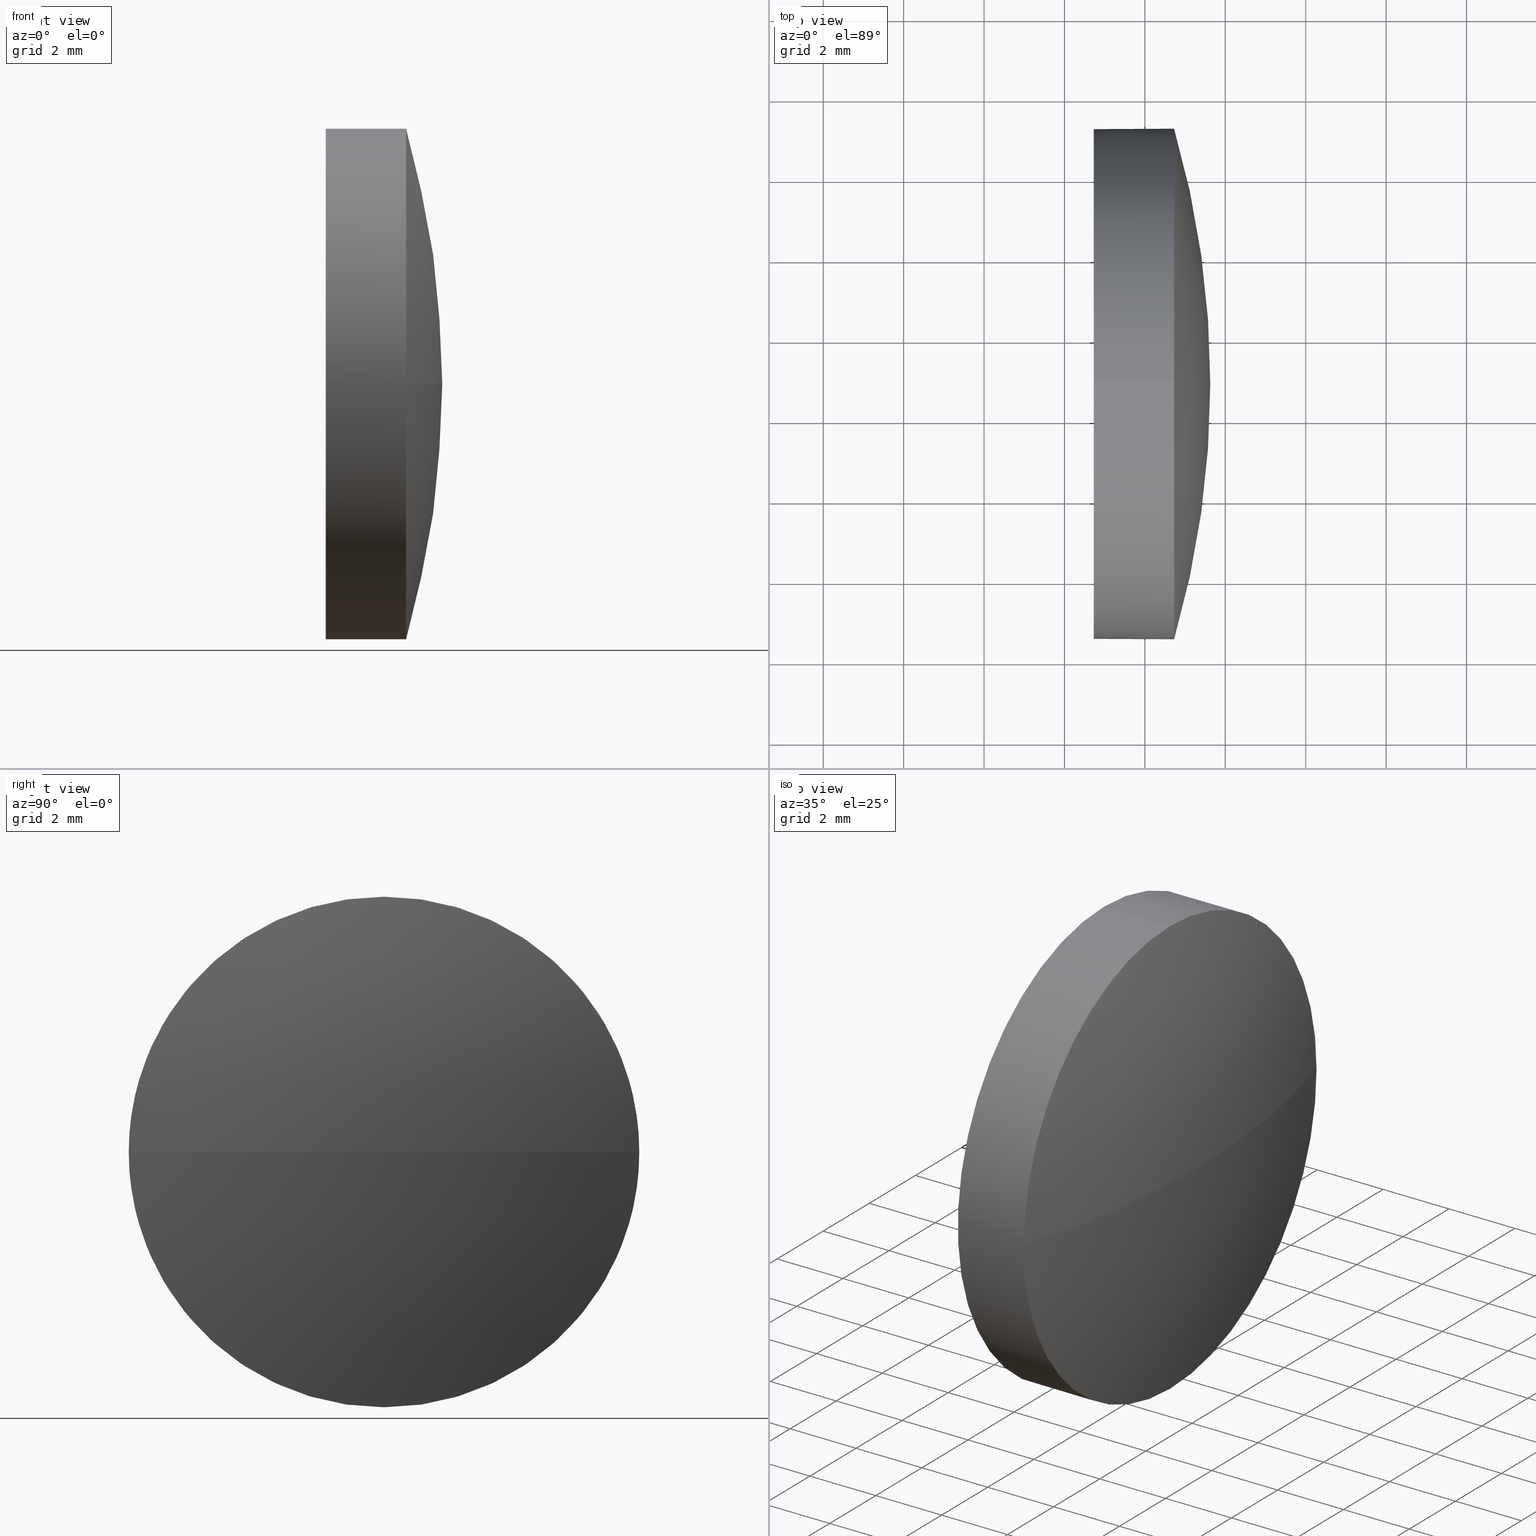
[diagram: canonical four-view strip — front | top / right | iso, engineering-drawing reading convention]
A machine part, canonical four-view strip (front | top / right | iso — engineering-drawing reading convention). The complete STEP part file that produces these views, byte-faithful:
ISO-10303-21;
HEADER;
FILE_DESCRIPTION (( 'STEP AP214' ),
    '1' );
FILE_NAME ('100367.STEP',
    '2019-06-04T05:32:25',
    ( '' ),
    ( '' ),
    'SwSTEP 2.0',
    'SolidWorks 2016',
    '' );
FILE_SCHEMA (( 'AUTOMOTIVE_DESIGN' ));
ENDSEC;

DATA;
#1 = CARTESIAN_POINT ( 'NONE',  ( 440.7273123846862900, -5.129459319946108500, 0.0000000000000000000 ) ) ;
#2 = ORIENTED_EDGE ( 'NONE', *, *, #157, .T. ) ;
#3 = FILL_AREA_STYLE ('',( #116 ) ) ;
#4 = ADVANCED_BREP_SHAPE_REPRESENTATION ( '100367', ( #118, #121 ), #57 ) ;
#5 = ORIENTED_EDGE ( 'NONE', *, *, #147, .T. ) ;
#6 = DIRECTION ( 'NONE',  ( 1.000000000000000000, 0.0000000000000000000, 0.0000000000000000000 ) ) ;
#7 = VERTEX_POINT ( 'NONE', #55 ) ;
#8 = AXIS2_PLACEMENT_3D ( 'NONE', #64, #76, #29 ) ;
#9 =( NAMED_UNIT ( * ) SI_UNIT ( $, .STERADIAN. ) SOLID_ANGLE_UNIT ( ) );
#10 = DIRECTION ( 'NONE',  ( 0.0000000000000000000, 0.0000000000000000000, 1.000000000000000000 ) ) ;
#11 = DIRECTION ( 'NONE',  ( 0.0000000000000000000, 0.0000000000000000000, 1.000000000000000000 ) ) ;
#12 = AXIS2_PLACEMENT_3D ( 'NONE', #185, #82, #125 ) ;
#13 = ORIENTED_EDGE ( 'NONE', *, *, #41, .T. ) ;
#14 = CARTESIAN_POINT ( 'NONE',  ( 420.7759234957979400, -5.129459319946038300, 0.0000000000000000000 ) ) ;
#15 = ADVANCED_FACE ( 'NONE', ( #21 ), #17, .T. ) ;
#16 = AXIS2_PLACEMENT_3D ( 'NONE', #88, #105, #47 ) ;
#17 = SPHERICAL_SURFACE ( 'NONE', #53, 22.85138888888821300 ) ;
#18 = DIRECTION ( 'NONE',  ( -1.000000000000000000, -0.0000000000000000000, -0.0000000000000000000 ) ) ;
#19 = DIRECTION ( 'NONE',  ( -1.000000000000000000, -0.0000000000000000000, -0.0000000000000000000 ) ) ;
#20 = EDGE_LOOP ( 'NONE', ( #144, #33, #179, #24, #164 ) ) ;
#21 = FACE_OUTER_BOUND ( 'NONE', #90, .T. ) ;
#22 = EDGE_CURVE ( 'NONE', #119, #79, #165, .T. ) ;
#23 =( LENGTH_UNIT ( ) NAMED_UNIT ( * ) SI_UNIT ( .MILLI., .METRE. ) );
#24 = ORIENTED_EDGE ( 'NONE', *, *, #63, .T. ) ;
#25 = DIRECTION ( 'NONE',  ( 0.0000000000000000000, 0.0000000000000000000, 1.000000000000000000 ) ) ;
#26 = CIRCLE ( 'NONE', #177, 6.349999999999999600 ) ;
#27 = CARTESIAN_POINT ( 'NONE',  ( 442.7273123846861700, -5.129459319946108500, 6.349999999999999600 ) ) ;
#28 = DIRECTION ( 'NONE',  ( 0.0000000000000000000, 0.0000000000000000000, 1.000000000000000000 ) ) ;
#29 = DIRECTION ( 'NONE',  ( 0.0000000000000000000, 0.0000000000000000000, 1.000000000000000000 ) ) ;
#30 = DIRECTION ( 'NONE',  ( 0.0000000000000000000, 0.0000000000000000000, -1.000000000000000000 ) ) ;
#31 = ORIENTED_EDGE ( 'NONE', *, *, #35, .T. ) ;
#32 = CYLINDRICAL_SURFACE ( 'NONE', #67, 6.349999999999999600 ) ;
#33 = ORIENTED_EDGE ( 'NONE', *, *, #50, .T. ) ;
#34 =( NAMED_UNIT ( * ) PLANE_ANGLE_UNIT ( ) SI_UNIT ( $, .RADIAN. ) );
#35 = EDGE_CURVE ( 'NONE', #62, #168, #58, .T. ) ;
#36 = ORIENTED_EDGE ( 'NONE', *, *, #151, .F. ) ;
#37 = AXIS2_PLACEMENT_3D ( 'NONE', #130, #159, #87 ) ;
#38 = CARTESIAN_POINT ( 'NONE',  ( 420.7759234957979400, -5.129459319946038300, 0.0000000000000000000 ) ) ;
#39 = DIRECTION ( 'NONE',  ( 0.0000000000000000000, 0.0000000000000000000, -1.000000000000000000 ) ) ;
#40 = PRESENTATION_STYLE_ASSIGNMENT (( #94 ) ) ;
#41 = EDGE_CURVE ( 'NONE', #7, #168, #135, .T. ) ;
#42 = DIRECTION ( 'NONE',  ( -1.000000000000000000, -0.0000000000000000000, -0.0000000000000000000 ) ) ;
#43 = AXIS2_PLACEMENT_3D ( 'NONE', #74, #42, #85 ) ;
#44 = SURFACE_SIDE_STYLE ('',( #98 ) ) ;
#45 = EDGE_LOOP ( 'NONE', ( #5, #31, #66, #155, #2 ) ) ;
#46 = FACE_OUTER_BOUND ( 'NONE', #102, .T. ) ;
#47 = DIRECTION ( 'NONE',  ( 0.0000000000000000000, -1.000000000000000000, -1.224646799147353200E-016 ) ) ;
#48 = ADVANCED_FACE ( 'NONE', ( #68 ), #141, .T. ) ;
#49 = AXIS2_PLACEMENT_3D ( 'NONE', #1, #6, #39 ) ;
#50 = EDGE_CURVE ( 'NONE', #62, #119, #175, .T. ) ;
#51 = UNCERTAINTY_MEASURE_WITH_UNIT (LENGTH_MEASURE( 1.000000000000000100E-005 ), #77, 'distance_accuracy_value', 'NONE');
#52 = ORIENTED_EDGE ( 'NONE', *, *, #163, .T. ) ;
#53 = AXIS2_PLACEMENT_3D ( 'NONE', #38, #180, #92 ) ;
#54 = FILL_AREA_STYLE_COLOUR ( '', #133 ) ;
#55 = CARTESIAN_POINT ( 'NONE',  ( 440.7273123846862900, -5.129459319946108500, 6.349999999999999600 ) ) ;
#56 = CARTESIAN_POINT ( 'NONE',  ( 438.3992838946919600, -5.129459319946108500, 0.0000000000000000000 ) ) ;
#57 =( GEOMETRIC_REPRESENTATION_CONTEXT ( 3 ) GLOBAL_UNCERTAINTY_ASSIGNED_CONTEXT ( ( #169 ) ) GLOBAL_UNIT_ASSIGNED_CONTEXT ( ( #23, #71, #9 ) ) REPRESENTATION_CONTEXT ( 'NONE', 'WORKASPACE' ) );
#58 = LINE ( 'NONE', #59, #128 ) ;
#59 = CARTESIAN_POINT ( 'NONE',  ( 438.3992838946919600, -5.129459319946107600, -6.349999999999999600 ) ) ;
#60 = PLANE ( 'NONE',  #49 ) ;
#61 = CARTESIAN_POINT ( 'NONE',  ( 440.7273123846862900, -5.129459319946107600, -6.349999999999999600 ) ) ;
#62 = VERTEX_POINT ( 'NONE', #101 ) ;
#63 = EDGE_CURVE ( 'NONE', #79, #7, #143, .T. ) ;
#64 = CARTESIAN_POINT ( 'NONE',  ( 438.3992838946919600, -5.129459319946108500, 0.0000000000000000000 ) ) ;
#65 = FACE_OUTER_BOUND ( 'NONE', #45, .T. ) ;
#66 = ORIENTED_EDGE ( 'NONE', *, *, #41, .F. ) ;
#67 = AXIS2_PLACEMENT_3D ( 'NONE', #56, #170, #25 ) ;
#68 = FACE_OUTER_BOUND ( 'NONE', #123, .T. ) ;
#69 = MECHANICAL_DESIGN_GEOMETRIC_PRESENTATION_REPRESENTATION (  '', ( #183 ), #78 ) ;
#70 =( LENGTH_UNIT ( ) NAMED_UNIT ( * ) SI_UNIT ( .MILLI., .METRE. ) );
#71 =( NAMED_UNIT ( * ) PLANE_ANGLE_UNIT ( ) SI_UNIT ( $, .RADIAN. ) );
#72 = FACE_OUTER_BOUND ( 'NONE', #20, .T. ) ;
#73 = PRODUCT_DEFINITION_CONTEXT ( 'detailed design', #184, 'design' ) ;
#74 = CARTESIAN_POINT ( 'NONE',  ( 440.7273123846862900, -5.129459319946108500, 0.0000000000000000000 ) ) ;
#75 = PRESENTATION_LAYER_ASSIGNMENT (  '', '', ( #172 ) ) ;
#76 = DIRECTION ( 'NONE',  ( -1.000000000000000000, -0.0000000000000000000, -0.0000000000000000000 ) ) ;
#77 =( LENGTH_UNIT ( ) NAMED_UNIT ( * ) SI_UNIT ( .MILLI., .METRE. ) );
#78 =( GEOMETRIC_REPRESENTATION_CONTEXT ( 3 ) GLOBAL_UNCERTAINTY_ASSIGNED_CONTEXT ( ( #137 ) ) GLOBAL_UNIT_ASSIGNED_CONTEXT ( ( #70, #152, #96 ) ) REPRESENTATION_CONTEXT ( 'NONE', 'WORKASPACE' ) );
#79 = VERTEX_POINT ( 'NONE', #27 ) ;
#80 =( GEOMETRIC_REPRESENTATION_CONTEXT ( 3 ) GLOBAL_UNCERTAINTY_ASSIGNED_CONTEXT ( ( #51 ) ) GLOBAL_UNIT_ASSIGNED_CONTEXT ( ( #77, #34, #107 ) ) REPRESENTATION_CONTEXT ( 'NONE', 'WORKASPACE' ) );
#81 = DIRECTION ( 'NONE',  ( 1.000000000000000000, 0.0000000000000000000, 0.0000000000000000000 ) ) ;
#82 = DIRECTION ( 'NONE',  ( -1.000000000000000000, -0.0000000000000000000, -0.0000000000000000000 ) ) ;
#83 = ORIENTED_EDGE ( 'NONE', *, *, #50, .F. ) ;
#84 = CIRCLE ( 'NONE', #16, 22.85138888888821300 ) ;
#85 = DIRECTION ( 'NONE',  ( 0.0000000000000000000, 0.0000000000000000000, 1.000000000000000000 ) ) ;
#86 = MECHANICAL_DESIGN_GEOMETRIC_PRESENTATION_REPRESENTATION (  '', ( #172 ), #80 ) ;
#87 = DIRECTION ( 'NONE',  ( 0.0000000000000000000, 0.0000000000000000000, 1.000000000000000000 ) ) ;
#88 = CARTESIAN_POINT ( 'NONE',  ( 420.7759234957979400, -5.129459319946038300, 0.0000000000000000000 ) ) ;
#89 = ADVANCED_FACE ( 'NONE', ( #72 ), #32, .T. ) ;
#90 = EDGE_LOOP ( 'NONE', ( #132, #110, #83, #148 ) ) ;
#91 = AXIS2_PLACEMENT_3D ( 'NONE', #14, #30, #117 ) ;
#92 = DIRECTION ( 'NONE',  ( 0.0000000000000000000, -1.000000000000000000, 0.0000000000000000000 ) ) ;
#93 = PRODUCT ( '100367', '100367', '', ( #139 ) ) ;
#94 = SURFACE_STYLE_USAGE ( .BOTH. , #97 ) ;
#95 = PRODUCT_RELATED_PRODUCT_CATEGORY ( 'part', '', ( #93 ) ) ;
#96 =( NAMED_UNIT ( * ) SI_UNIT ( $, .STERADIAN. ) SOLID_ANGLE_UNIT ( ) );
#97 = SURFACE_SIDE_STYLE ('',( #136 ) ) ;
#98 = SURFACE_STYLE_FILL_AREA ( #3 ) ;
#99 = DIRECTION ( 'NONE',  ( -1.000000000000000000, -0.0000000000000000000, -0.0000000000000000000 ) ) ;
#100 = CIRCLE ( 'NONE', #91, 22.85138888888821300 ) ;
#101 = CARTESIAN_POINT ( 'NONE',  ( 442.7273123846861700, -5.129459319946107600, -6.349999999999999600 ) ) ;
#102 = EDGE_LOOP ( 'NONE', ( #13, #162 ) ) ;
#103 = CARTESIAN_POINT ( 'NONE',  ( 442.7273123846861700, -5.129459319946108500, 0.0000000000000000000 ) ) ;
#104 = CARTESIAN_POINT ( 'NONE',  ( 442.7273123846861700, -11.47945931994604700, 0.0000000000000000000 ) ) ;
#105 = DIRECTION ( 'NONE',  ( 0.0000000000000000000, -1.224646799147353200E-016, 1.000000000000000000 ) ) ;
#106 = VECTOR ( 'NONE', #19, 1000.000000000000000 ) ;
#107 =( NAMED_UNIT ( * ) SI_UNIT ( $, .STERADIAN. ) SOLID_ANGLE_UNIT ( ) );
#108 = AXIS2_PLACEMENT_3D ( 'NONE', #103, #153, #124 ) ;
#109 = PRESENTATION_STYLE_ASSIGNMENT (( #145 ) ) ;
#110 = ORIENTED_EDGE ( 'NONE', *, *, #151, .T. ) ;
#111 = CIRCLE ( 'NONE', #12, 6.349999999999999600 ) ;
#112 = PRODUCT_DEFINITION_SHAPE ( 'NONE', 'NONE',  #161 ) ;
#113 = ORIENTED_EDGE ( 'NONE', *, *, #157, .F. ) ;
#114 = DIRECTION ( 'NONE',  ( 0.0000000000000000000, -1.000000000000000000, 0.0000000000000000000 ) ) ;
#115 = CARTESIAN_POINT ( 'NONE',  ( 442.7273123846861700, -5.129459319946108500, 0.0000000000000000000 ) ) ;
#116 = FILL_AREA_STYLE_COLOUR ( '', #182 ) ;
#117 = DIRECTION ( 'NONE',  ( -1.000000000000000000, 0.0000000000000000000, 0.0000000000000000000 ) ) ;
#118 = MANIFOLD_SOLID_BREP ( '��ת1', #171 ) ;
#119 = VERTEX_POINT ( 'NONE', #104 ) ;
#120 = CYLINDRICAL_SURFACE ( 'NONE', #8, 6.349999999999999600 ) ;
#121 = AXIS2_PLACEMENT_3D ( 'NONE', #166, #10, #81 ) ;
#122 = APPLICATION_CONTEXT ( 'automotive_design' ) ;
#123 = EDGE_LOOP ( 'NONE', ( #36, #52, #113, #181 ) ) ;
#124 = DIRECTION ( 'NONE',  ( 0.0000000000000000000, 0.0000000000000000000, 1.000000000000000000 ) ) ;
#125 = DIRECTION ( 'NONE',  ( 0.0000000000000000000, 0.0000000000000000000, 1.000000000000000000 ) ) ;
#126 = CARTESIAN_POINT ( 'NONE',  ( 420.7759234957979400, -5.129459319946038300, 0.0000000000000000000 ) ) ;
#127 = VERTEX_POINT ( 'NONE', #173 ) ;
#128 = VECTOR ( 'NONE', #18, 1000.000000000000000 ) ;
#129 = SHAPE_DEFINITION_REPRESENTATION ( #112, #4 ) ;
#130 = CARTESIAN_POINT ( 'NONE',  ( 442.7273123846861700, -5.129459319946108500, 0.0000000000000000000 ) ) ;
#131 = CARTESIAN_POINT ( 'NONE',  ( 443.6273123846861500, -5.129459319946040100, 0.0000000000000000000 ) ) ;
#132 = ORIENTED_EDGE ( 'NONE', *, *, #163, .F. ) ;
#133 = COLOUR_RGB ( '',1.000000000000000000, 1.000000000000000000, 1.000000000000000000 ) ;
#134 = AXIS2_PLACEMENT_3D ( 'NONE', #126, #28, #114 ) ;
#135 = CIRCLE ( 'NONE', #43, 6.349999999999999600 ) ;
#136 = SURFACE_STYLE_FILL_AREA ( #150 ) ;
#137 = UNCERTAINTY_MEASURE_WITH_UNIT (LENGTH_MEASURE( 1.000000000000000100E-005 ), #70, 'distance_accuracy_value', 'NONE');
#138 = VERTEX_POINT ( 'NONE', #131 ) ;
#139 = PRODUCT_CONTEXT ( 'NONE', #122, 'mechanical' ) ;
#140 = APPLICATION_PROTOCOL_DEFINITION ( 'draft international standard', 'automotive_design', 1998, #122 ) ;
#141 = SPHERICAL_SURFACE ( 'NONE', #134, 22.85138888888821300 ) ;
#142 = PRESENTATION_LAYER_ASSIGNMENT (  '', '', ( #183 ) ) ;
#143 = LINE ( 'NONE', #154, #106 ) ;
#144 = ORIENTED_EDGE ( 'NONE', *, *, #35, .F. ) ;
#145 = SURFACE_STYLE_USAGE ( .BOTH. , #44 ) ;
#146 = PRODUCT_DEFINITION_FORMATION_WITH_SPECIFIED_SOURCE ( '�κ�', '', #93, .NOT_KNOWN. ) ;
#147 = EDGE_CURVE ( 'NONE', #127, #62, #178, .T. ) ;
#148 = ORIENTED_EDGE ( 'NONE', *, *, #147, .F. ) ;
#149 = AXIS2_PLACEMENT_3D ( 'NONE', #115, #99, #11 ) ;
#150 = FILL_AREA_STYLE ('',( #54 ) ) ;
#151 = EDGE_CURVE ( 'NONE', #138, #119, #100, .T. ) ;
#152 =( NAMED_UNIT ( * ) PLANE_ANGLE_UNIT ( ) SI_UNIT ( $, .RADIAN. ) );
#153 = DIRECTION ( 'NONE',  ( -1.000000000000000000, -0.0000000000000000000, -0.0000000000000000000 ) ) ;
#154 = CARTESIAN_POINT ( 'NONE',  ( 438.3992838946919600, -5.129459319946108500, 6.349999999999999600 ) ) ;
#155 = ORIENTED_EDGE ( 'NONE', *, *, #63, .F. ) ;
#156 = DIRECTION ( 'NONE',  ( -1.000000000000000000, -0.0000000000000000000, -0.0000000000000000000 ) ) ;
#157 = EDGE_CURVE ( 'NONE', #79, #127, #26, .T. ) ;
#158 = ADVANCED_FACE ( 'NONE', ( #65 ), #120, .T. ) ;
#159 = DIRECTION ( 'NONE',  ( -1.000000000000000000, -0.0000000000000000000, -0.0000000000000000000 ) ) ;
#160 = CARTESIAN_POINT ( 'NONE',  ( 442.7273123846861700, -5.129459319946108500, 0.0000000000000000000 ) ) ;
#161 = PRODUCT_DEFINITION ( 'δ֪', '', #146, #73 ) ;
#162 = ORIENTED_EDGE ( 'NONE', *, *, #186, .T. ) ;
#163 = EDGE_CURVE ( 'NONE', #138, #127, #84, .T. ) ;
#164 = ORIENTED_EDGE ( 'NONE', *, *, #186, .F. ) ;
#165 = CIRCLE ( 'NONE', #108, 6.349999999999999600 ) ;
#166 = CARTESIAN_POINT ( 'NONE',  ( 0.0000000000000000000, 0.0000000000000000000, 0.0000000000000000000 ) ) ;
#167 = APPLICATION_PROTOCOL_DEFINITION ( 'draft international standard', 'automotive_design', 1998, #184 ) ;
#168 = VERTEX_POINT ( 'NONE', #61 ) ;
#169 = UNCERTAINTY_MEASURE_WITH_UNIT (LENGTH_MEASURE( 1.000000000000000100E-005 ), #23, 'distance_accuracy_value', 'NONE');
#170 = DIRECTION ( 'NONE',  ( -1.000000000000000000, -0.0000000000000000000, -0.0000000000000000000 ) ) ;
#171 = CLOSED_SHELL ( 'NONE', ( #158, #48, #15, #89, #176 ) ) ;
#172 = STYLED_ITEM ( 'NONE', ( #109 ), #118 ) ;
#173 = CARTESIAN_POINT ( 'NONE',  ( 442.7273123846861700, 1.220540680053899800, 7.776507174585617200E-016 ) ) ;
#174 = DIRECTION ( 'NONE',  ( 0.0000000000000000000, 0.0000000000000000000, 1.000000000000000000 ) ) ;
#175 = CIRCLE ( 'NONE', #149, 6.349999999999999600 ) ;
#176 = ADVANCED_FACE ( 'NONE', ( #46 ), #60, .F. ) ;
#177 = AXIS2_PLACEMENT_3D ( 'NONE', #160, #156, #174 ) ;
#178 = CIRCLE ( 'NONE', #37, 6.349999999999999600 ) ;
#179 = ORIENTED_EDGE ( 'NONE', *, *, #22, .T. ) ;
#180 = DIRECTION ( 'NONE',  ( 0.0000000000000000000, 0.0000000000000000000, 1.000000000000000000 ) ) ;
#181 = ORIENTED_EDGE ( 'NONE', *, *, #22, .F. ) ;
#182 = COLOUR_RGB ( '',1.000000000000000000, 1.000000000000000000, 1.000000000000000000 ) ;
#183 = STYLED_ITEM ( 'NONE', ( #40 ), #4 ) ;
#184 = APPLICATION_CONTEXT ( 'automotive_design' ) ;
#185 = CARTESIAN_POINT ( 'NONE',  ( 440.7273123846862900, -5.129459319946108500, 0.0000000000000000000 ) ) ;
#186 = EDGE_CURVE ( 'NONE', #168, #7, #111, .T. ) ;
ENDSEC;
END-ISO-10303-21;
